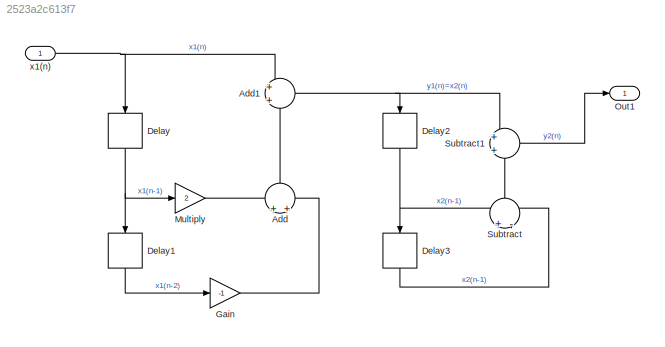
MODEL slx_2523a2c613f7
KIND model
CONFIG AbsTol = auto
CONFIG EnableMultiTasking = off
CONFIG FixedStep = 0.2
CONFIG MaxStep = auto
CONFIG MinStep = auto
CONFIG RelTol = 1e-3
CONFIG SampleTimeConstraint = Unconstrained
CONFIG Solver = FixedStepAuto
CONFIG SolverName = FixedStepAuto
CONFIG StartTime = 0.0
CONFIG StopTime = 10.0
BLOCK [Sum] Add
  NameLocation = right
  Ports = [2, 1]
BLOCK [Sum] Add1
  Ports = [2, 1]
BLOCK [Delay] Delay
  DelayLength = 1
  InputPortMap = u0
  NameLocation = left
  Ports = [1, 1]
BLOCK [Delay] Delay1
  DelayLength = 1
  InputPortMap = u0
  NameLocation = left
  Ports = [1, 1]
BLOCK [Delay] Delay2
  DelayLength = 1
  InputPortMap = u0
  NameLocation = left
  Ports = [1, 1]
BLOCK [Delay] Delay3
  DelayLength = 1
  InputPortMap = u0
  NameLocation = left
  Ports = [1, 1]
BLOCK [Gain] Gain
  Gain = -1
BLOCK [Gain] Multiply
  Gain = 2
BLOCK [Outport] Out1
  OutDataTypeStr = double
  PortDimensions = 1
  SampleTime = [0.20000000000000001,0]
  SamplingMode = Sample based
  SignalType = real
BLOCK [Sum] Subtract
  Inputs = +-
  NameLocation = right
  Ports = [2, 1]
BLOCK [Sum] Subtract1
  Ports = [2, 1]
BLOCK [Inport] x1(n)
  OutDataTypeStr = double
  PortDimensions = 1
  SampleTime = [0.20000000000000001,0]
  SamplingMode = Sample based
  SignalType = real
NET Add1:1 -> Delay2:1, Subtract1:1
LINE Add:1 -> Add1:2
LINE Delay1:1 -> Gain:1
NET Delay2:1 -> Delay3:1, Subtract:1
LINE Delay3:1 -> Subtract:2
NET Delay:1 -> Delay1:1, Multiply:1
LINE Gain:1 -> Add:2
LINE Multiply:1 -> Add:1
LINE Subtract1:1 -> Out1:1
LINE Subtract:1 -> Subtract1:2
NET x1(n):1 -> Add1:1, Delay:1
note: NET lines group one-source signal fan-out (src -> all destinations, sorted); 1:1 wires keep LINE
